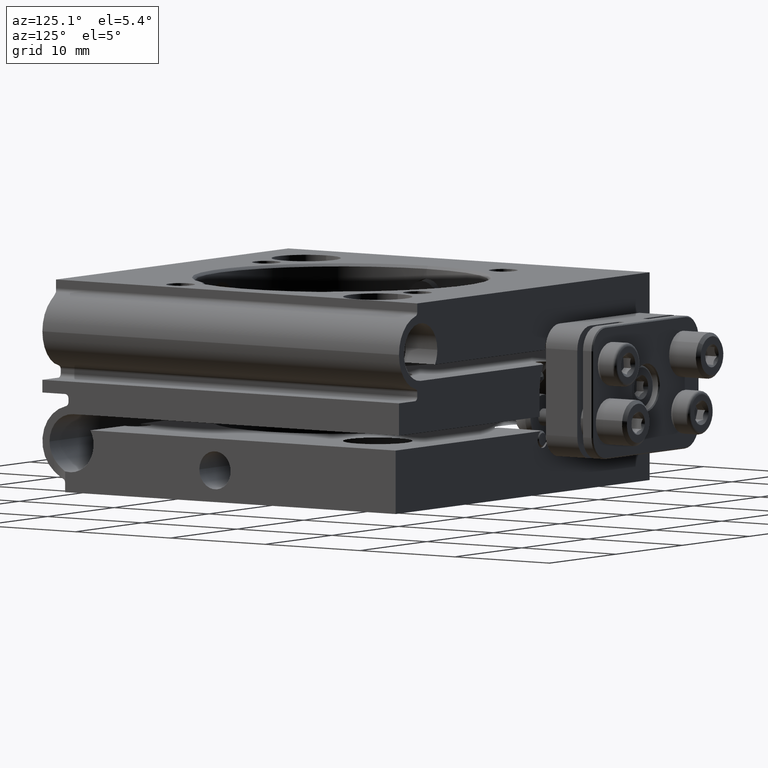
[diagram: clean part render]
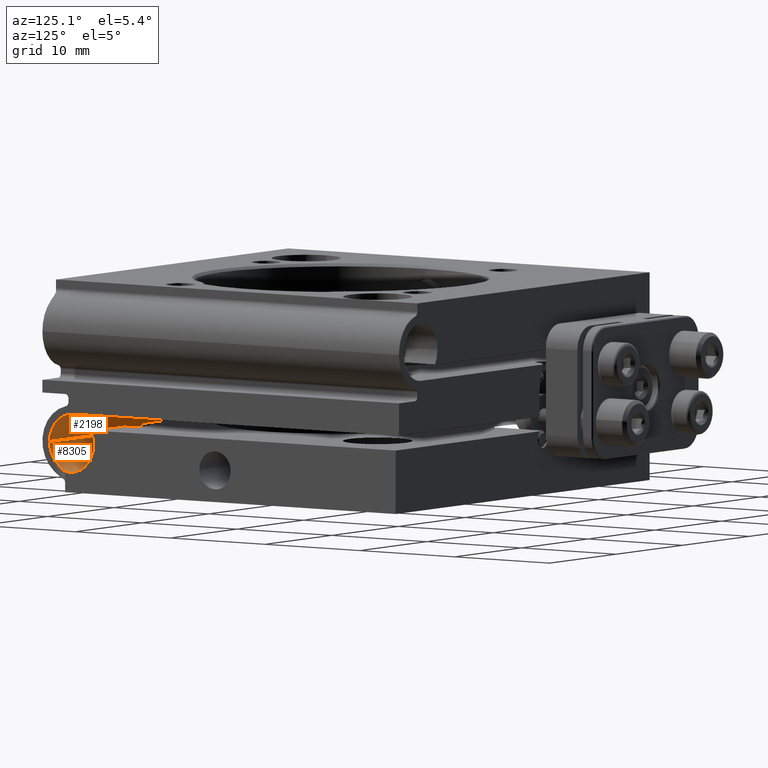
[diagram: same view with one multi-face feature highlighted, each face labeled with its STEP entity id]
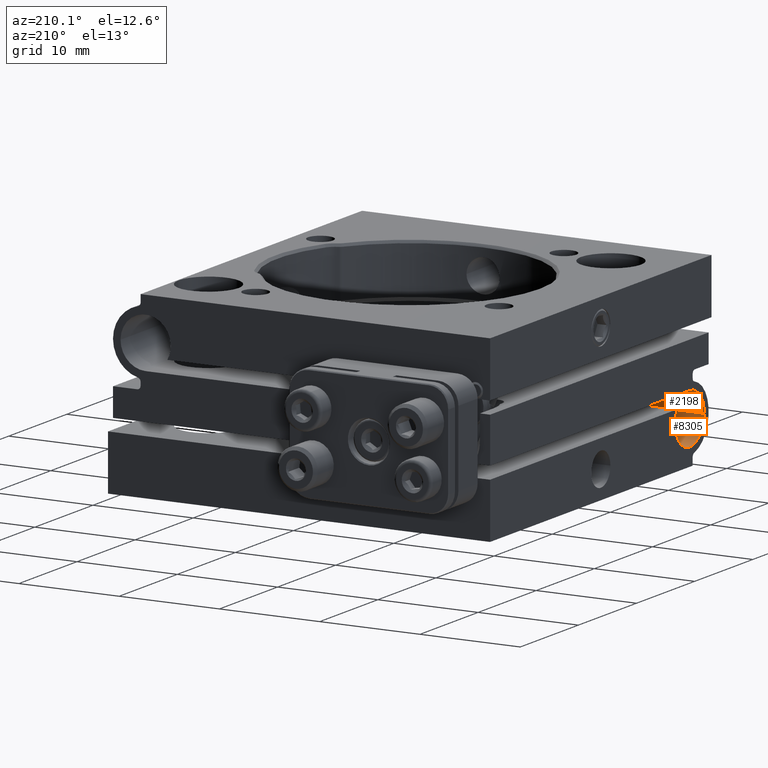
[diagram: same view with one multi-face feature highlighted, each face labeled with its STEP entity id]
A machine part, auxiliary view. The highlighted faces form ONE feature: a constant-radius fillet chain: 2 tangent blend faces with common blend radius 2.5 mm. The faces share edges in the B-rep.
A second angle (auxiliary view) of the same feature is appended — it is thin or edge-on in the first view.
Their STEP definitions:
[1] entity #8305 (Cylinder):
#11 = CARTESIAN_POINT ( 'NONE',  ( -11.86912552345113880, -14.18676383181794520, -6.989363147326552728 ) ) ;
#238 = CARTESIAN_POINT ( 'NONE',  ( 18.68813172906444109, -16.46912829085308871, -6.965143484915157224 ) ) ;
#268 = CARTESIAN_POINT ( 'NONE',  ( -19.05000000000014637, -12.80000000000006288, -4.749999999999998224 ) ) ;
#290 = CARTESIAN_POINT ( 'NONE',  ( -13.92869451226762401, -13.87913141418914975, -6.808564662429896330 ) ) ;
#352 = CARTESIAN_POINT ( 'NONE',  ( -19.05000000000016769, -17.80000000000006466, -4.749999999999997335 ) ) ;
#376 = ORIENTED_EDGE ( 'NONE', *, *, #9186, .F. ) ;
#416 = CARTESIAN_POINT ( 'NONE',  ( 11.52412764482604324, -13.12846052928413343, -5.995465306622119073 ) ) ;
#471 = VERTEX_POINT ( 'NONE', #3362 ) ;
#515 = CARTESIAN_POINT ( 'NONE',  ( 11.46256269244022619, -12.88136620718312209, -5.395786126397510429 ) ) ;
#652 = CARTESIAN_POINT ( 'NONE',  ( -9.709211507187383461, -12.94158334155742551, -5.607360020909707643 ) ) ;
#697 = VERTEX_POINT ( 'NONE', #3901 ) ;
#711 = ORIENTED_EDGE ( 'NONE', *, *, #2916, .T. ) ;
#728 = DIRECTION ( 'NONE',  ( 4.163336342344336238E-15, 1.000000000000000000, 0.0000000000000000000 ) ) ;
#844 = CARTESIAN_POINT ( 'NONE',  ( -11.61386751386468852, -14.01159592638274276, -6.893964289492882536 ) ) ;
#891 = CIRCLE ( 'NONE', #6942, 2.500000000000000444 ) ;
#895 = CARTESIAN_POINT ( 'NONE',  ( -12.91460359052774010, -14.38987082446433341, -7.078550966411806478 ) ) ;
#1057 = CARTESIAN_POINT ( 'NONE',  ( -14.15152297403902182, -13.58861523324675069, -6.575215373638408245 ) ) ;
#1144 = DIRECTION ( 'NONE',  ( 1.000000000000000000, 4.496403249731883989E-15, -2.403560570595272096E-31 ) ) ;
#1192 = CARTESIAN_POINT ( 'NONE',  ( 12.83422845103322985, -13.94977099954785160, -6.854015617617140954 ) ) ;
#1244 = CARTESIAN_POINT ( 'NONE',  ( 13.32034662612652554, -13.79173336060420496, -6.745724521207088209 ) ) ;
#1294 = EDGE_CURVE ( 'NONE', #6126, #10457, #7022, .T. ) ;
#1300 = CARTESIAN_POINT ( 'NONE',  ( 12.08197417720247735, -13.79304886617384795, -6.746703779624845687 ) ) ;
#1358 = CARTESIAN_POINT ( 'NONE',  ( 12.44028463092808323, -13.92953151930788636, -6.841437826247542375 ) ) ;
#1467 = ORIENTED_EDGE ( 'NONE', *, *, #9191, .T. ) ;
#1483 = LINE ( 'NONE', #4088, #4019 ) ;
#1501 = VECTOR ( 'NONE', #8415, 1000.000000000000000 ) ;
#1622 = CARTESIAN_POINT ( 'NONE',  ( 18.54999999999985860, -17.29999999999984794, -6.250000000000006217 ) ) ;
#1843 = LINE ( 'NONE', #268, #6780 ) ;
#1924 = CARTESIAN_POINT ( 'NONE',  ( 18.87382707348820077, -16.06007467825546797, -7.136141662852739209 ) ) ;
#2103 = CARTESIAN_POINT ( 'NONE',  ( 13.94599357943763529, -12.79999999999991367, -4.749999999999998224 ) ) ;
#2161 = CARTESIAN_POINT ( 'NONE',  ( 11.45470776693139037, -12.81030840514915248, -5.011684003713690494 ) ) ;
#2287 = VERTEX_POINT ( 'NONE', #3980 ) ;
#2366 = LINE ( 'NONE', #4857, #6908 ) ;
#2367 = DIRECTION ( 'NONE',  ( 1.000000000000000000, 4.496403249731883989E-15, 1.000802005371234018E-16 ) ) ;
#2391 = ORIENTED_EDGE ( 'NONE', *, *, #10106, .T. ) ;
#2426 = CARTESIAN_POINT ( 'NONE',  ( -9.701667129887086460, -12.80000000000002203, -4.749999999999998224 ) ) ;
#2650 = ORIENTED_EDGE ( 'NONE', *, *, #3872, .T. ) ;
#2794 = CARTESIAN_POINT ( 'NONE',  ( 11.80471076283997611, -13.57833685395233125, -6.566257052199834021 ) ) ;
#2827 = CARTESIAN_POINT ( 'NONE',  ( -15.69076080545631413, -12.94199486141328315, -5.608742429974792110 ) ) ;
#2883 = CARTESIAN_POINT ( 'NONE',  ( -9.731695728332885764, -13.13493649053896917, -5.999999999999999112 ) ) ;
#2910 = DIRECTION ( 'NONE',  ( 1.000000000000000000, 4.496403249731883989E-15, -2.403560570595272096E-31 ) ) ;
#2916 = EDGE_CURVE ( 'NONE', #2287, #8835, #1483, .T. ) ;
#2933 = CARTESIAN_POINT ( 'NONE',  ( -15.69776663888022483, -12.82886771209605214, -5.187186470878256017 ) ) ;
#2959 = CARTESIAN_POINT ( 'NONE',  ( 11.67351692628846394, -13.42066007699137664, -6.402572274337900105 ) ) ;
#3021 = CARTESIAN_POINT ( 'NONE',  ( 13.88851434937796014, -13.12083366201021839, -6.000926537023002716 ) ) ;
#3130 = ORIENTED_EDGE ( 'NONE', *, *, #10241, .T. ) ;
#3143 = VERTEX_POINT ( 'NONE', #7575 ) ;
#3159 = ORIENTED_EDGE ( 'NONE', *, *, #3198, .F. ) ;
#3177 = CARTESIAN_POINT ( 'NONE',  ( -11.05657971011751073, -13.13493649053896917, -5.999999999999999112 ) ) ;
#3198 = EDGE_CURVE ( 'NONE', #6126, #9782, #1843, .T. ) ;
#3305 = CARTESIAN_POINT ( 'NONE',  ( 19.04999999999984084, -12.79999999999992433, -4.749999999999998224 ) ) ;
#3339 = CIRCLE ( 'NONE', #3687, 2.500000000000000444 ) ;
#3362 = CARTESIAN_POINT ( 'NONE',  ( -19.05000000000016769, -12.80000000000006288, -4.749999999999998224 ) ) ;
#3451 = CARTESIAN_POINT ( 'NONE',  ( -13.23017390463614262, -14.31876651382368948, -7.049798466339553649 ) ) ;
#3573 = CARTESIAN_POINT ( 'NONE',  ( 19.04999999999985150, -15.79999999999985505, -7.199489742783176105 ) ) ;
#3687 = AXIS2_PLACEMENT_3D ( 'NONE', #7082, #2910, #6116 ) ;
#3749 = CARTESIAN_POINT ( 'NONE',  ( 11.48786131634929752, -13.01140653881117260, -5.764449344363741901 ) ) ;
#3795 = CARTESIAN_POINT ( 'NONE',  ( 13.94471040278054907, -12.84077933941733285, -5.269831506963962298 ) ) ;
#3849 = CARTESIAN_POINT ( 'NONE',  ( 11.88650555986597013, -13.65652419590910327, -6.635925498177451587 ) ) ;
#3872 = EDGE_CURVE ( 'NONE', #3143, #9795, #7010, .T. ) ;
#3901 = CARTESIAN_POINT ( 'NONE',  ( -19.05000000000014637, -17.80000000000006466, -4.749999999999997335 ) ) ;
#3980 = CARTESIAN_POINT ( 'NONE',  ( -14.34342028988264062, -13.13493649053896917, -5.999999999999999112 ) ) ;
#4019 = VECTOR ( 'NONE', #10611, 1000.000000000000000 ) ;
#4055 = CARTESIAN_POINT ( 'NONE',  ( -11.08523992944088832, -13.24322997009999270, -6.187569808728107468 ) ) ;
#4087 = CARTESIAN_POINT ( 'NONE',  ( -9.702246577588546472, -12.82904548840941139, -5.187697546170661589 ) ) ;
#4088 = CARTESIAN_POINT ( 'NONE',  ( -19.05000000000015703, -13.13493649053896739, -5.999999999999999112 ) ) ;
#4139 = CARTESIAN_POINT ( 'NONE',  ( -9.715604897026715037, -13.02512164552193497, -5.809795109005198910 ) ) ;
#4163 = CARTESIAN_POINT ( 'NONE',  ( -12.26229450242418828, -14.35652766842836847, -7.066794439296760544 ) ) ;
#4272 = CARTESIAN_POINT ( 'NONE',  ( -13.78166124993190955, -14.01531366479635032, -6.896191284040233072 ) ) ;
#4323 = CARTESIAN_POINT ( 'NONE',  ( 18.61148306599518421, -16.73219308837903796, -6.804883105394170073 ) ) ;
#4327 = DIRECTION ( 'NONE',  ( 4.163336342344336238E-15, 1.000000000000000000, 0.0000000000000000000 ) ) ;
#4372 = CARTESIAN_POINT ( 'NONE',  ( -14.34342028988264062, -13.13493649053896917, -5.999999999999999112 ) ) ;
#4429 = CARTESIAN_POINT ( 'NONE',  ( -13.12721162247956030, -14.34900222378915302, -7.062160883022761126 ) ) ;
#4550 = AXIS2_PLACEMENT_3D ( 'NONE', #7282, #9679, #728 ) ;
#4564 = CARTESIAN_POINT ( 'NONE',  ( 13.59647068351310395, -13.57714420275624079, -6.565147973023622185 ) ) ;
#4614 = CARTESIAN_POINT ( 'NONE',  ( 11.45899719018203555, -12.85110498341038543, -5.269572856289786777 ) ) ;
#4664 = CARTESIAN_POINT ( 'NONE',  ( 11.45400642056222473, -12.79999999999992610, -4.749999999999998224 ) ) ;
#4690 = CARTESIAN_POINT ( 'NONE',  ( -11.05657971011751073, -13.13493649053896917, -5.999999999999999112 ) ) ;
#4857 = CARTESIAN_POINT ( 'NONE',  ( -19.05000000000015703, -13.13493649053896739, -5.999999999999999112 ) ) ;
#4880 = VECTOR ( 'NONE', #1144, 1000.000000000000000 ) ;
#4958 = CARTESIAN_POINT ( 'NONE',  ( -11.28658732128784692, -13.65851131845306021, -6.646591189127975419 ) ) ;
#5004 = CARTESIAN_POINT ( 'NONE',  ( -11.13042043642542112, -13.37297796513397685, -6.355655413675481924 ) ) ;
#5090 = CARTESIAN_POINT ( 'NONE',  ( -9.701667129887086460, -12.80000000000002203, -4.749999999999998224 ) ) ;
#5206 = CARTESIAN_POINT ( 'NONE',  ( 18.95454264642005171, -15.92727647143958514, -7.173509541842406634 ) ) ;
#5290 = CARTESIAN_POINT ( 'NONE',  ( 13.51552427558941361, -13.65479412604345200, -6.634431546212399056 ) ) ;
#5339 = CARTESIAN_POINT ( 'NONE',  ( 13.77623262584988240, -13.34110464629130277, -6.308404560964081753 ) ) ;
#5342 = CARTESIAN_POINT ( 'NONE',  ( -19.05000000000014637, -12.80000000000006288, -4.749999999999998224 ) ) ;
#5396 = CARTESIAN_POINT ( 'NONE',  ( 13.20874725469326805, -13.84900904893340190, -6.786405139525696129 ) ) ;
#5462 = CARTESIAN_POINT ( 'NONE',  ( 11.45400642056222296, -12.79999999999992255, -4.879996780887808860 ) ) ;
#5540 = CARTESIAN_POINT ( 'NONE',  ( -15.66830427166733841, -13.13493649053896739, -5.999999999999999112 ) ) ;
#5666 = CARTESIAN_POINT ( 'NONE',  ( -11.96500703867740789, -14.23662059452732365, -7.012994336850168153 ) ) ;
#5670 = DIRECTION ( 'NONE',  ( 0.0000000000000000000, -5.551115123125781913E-15, -1.000000000000000000 ) ) ;
#5802 = VERTEX_POINT ( 'NONE', #6290 ) ;
#5876 = CARTESIAN_POINT ( 'NONE',  ( -13.52507870258987666, -14.18998210844592300, -6.990946109310413270 ) ) ;
#5880 = CARTESIAN_POINT ( 'NONE',  ( 18.58596479574201510, -16.86118493322948098, -6.709036736690567437 ) ) ;
#6116 = DIRECTION ( 'NONE',  ( 4.163336342344336238E-15, 1.000000000000000000, 0.0000000000000000000 ) ) ;
#6126 = VERTEX_POINT ( 'NONE', #6418 ) ;
#6143 = AXIS2_PLACEMENT_3D ( 'NONE', #10536, #2367, #5670 ) ;
#6155 = ORIENTED_EDGE ( 'NONE', *, *, #7985, .F. ) ;
#6262 = CARTESIAN_POINT ( 'NONE',  ( 13.94599357943763707, -12.79999999999991722, -5.011990692198999398 ) ) ;
#6290 = CARTESIAN_POINT ( 'NONE',  ( 19.04999999999985150, -15.79999999999985505, -7.199489742783176105 ) ) ;
#6326 = CARTESIAN_POINT ( 'NONE',  ( 11.47692158286395525, -12.96119719903695078, -5.642653685933487928 ) ) ;
#6418 = CARTESIAN_POINT ( 'NONE',  ( 13.94599357943763529, -12.79999999999991367, -4.749999999999998224 ) ) ;
#6481 = CARTESIAN_POINT ( 'NONE',  ( -11.69406596427143086, -14.07437833333661636, -6.929883850565940584 ) ) ;
#6584 = CYLINDRICAL_SURFACE ( 'NONE', #4550, 2.500000000000000444 ) ;
#6647 = B_SPLINE_CURVE_WITH_KNOTS ( 'NONE', 3,
 ( #6701, #9358, #7698, #5880, #4323, #238, #10051, #1924, #5206, #3573 ),
 .UNSPECIFIED., .F., .F.,
 ( 4, 2, 2, 2, 4 ),
 ( 0.0000000000000000000, 0.0004769045104964324527, 0.0009538090209928649053, 0.001430713531489297358, 0.001907618041985729811 ),
 .UNSPECIFIED. ) ;
#6650 = LINE ( 'NONE', #7150, #8821 ) ;
#6701 = CARTESIAN_POINT ( 'NONE',  ( 18.54999999999985860, -17.29999999999984794, -6.250000000000006217 ) ) ;
#6780 = VECTOR ( 'NONE', #9118, 1000.000000000000000 ) ;
#6811 = CARTESIAN_POINT ( 'NONE',  ( -19.05000000000015703, -15.30000000000006288, -4.749999999999998224 ) ) ;
#6908 = VECTOR ( 'NONE', #7238, 1000.000000000000000 ) ;
#6942 = AXIS2_PLACEMENT_3D ( 'NONE', #6811, #7555, #4327 ) ;
#7010 = CIRCLE ( 'NONE', #6143, 2.500000000000000444 ) ;
#7022 = B_SPLINE_CURVE_WITH_KNOTS ( 'NONE', 3,
 ( #2103, #6262, #3795, #9431, #3021, #5339, #7927, #4564, #5290, #1244, #5396, #8679, #1192, #10325, #1358, #7821, #1300, #3849, #2794, #2959, #9538, #8789, #416, #3749, #6326, #515, #4614, #2161, #5462, #4664 ),
 .UNSPECIFIED., .F., .F.,
 ( 4, 2, 2, 2, 2, 2, 2, 2, 2, 2, 2, 2, 2, 2, 4 ),
 ( 0.001309545519959423240, 0.002090649443888993250, 0.002871753367818563694, 0.003262305329783346530, 0.003652857291748129800, 0.004043409253712913071, 0.004433961215677696341, 0.004824513177642478744, 0.005215065139607261147, 0.005605617101572045284, 0.005996169063536827687, 0.006386721025501610957, 0.006777272987466393360, 0.007167824949431176630, 0.007558376911395959900 ),
 .UNSPECIFIED. ) ;
#7047 = CARTESIAN_POINT ( 'NONE',  ( -15.66830427166733841, -13.13493649053896739, -5.999999999999999112 ) ) ;
#7082 = CARTESIAN_POINT ( 'NONE',  ( 19.04999999999985150, -15.29999999999992433, -4.749999999999998224 ) ) ;
#7150 = CARTESIAN_POINT ( 'NONE',  ( -19.05000000000014637, -12.80000000000006288, -4.749999999999998224 ) ) ;
#7238 = DIRECTION ( 'NONE',  ( -1.000000000000000000, -4.496403249731883989E-15, 2.403560570595272096E-31 ) ) ;
#7259 = CARTESIAN_POINT ( 'NONE',  ( -9.701667129887088237, -12.80000000000001847, -4.967136381218725916 ) ) ;
#7282 = CARTESIAN_POINT ( 'NONE',  ( -19.05000000000015703, -15.30000000000006288, -4.749999999999998224 ) ) ;
#7344 = CARTESIAN_POINT ( 'NONE',  ( -12.48037737081941678, -14.39957574503835680, -7.082217049234953876 ) ) ;
#7361 = VERTEX_POINT ( 'NONE', #4690 ) ;
#7492 = CARTESIAN_POINT ( 'NONE',  ( -13.99263437193554971, -13.80790462005029973, -6.758056835336978097 ) ) ;
#7555 = DIRECTION ( 'NONE',  ( 1.000000000000000000, 4.496403249731883989E-15, -2.403560570595272096E-31 ) ) ;
#7575 = CARTESIAN_POINT ( 'NONE',  ( 18.54999999999985505, -17.79999999999992610, -4.749999999999997335 ) ) ;
#7689 = VERTEX_POINT ( 'NONE', #5090 ) ;
#7698 = CARTESIAN_POINT ( 'NONE',  ( 18.55551543504372347, -17.09610074585136275, -6.496180243330604398 ) ) ;
#7745 = CARTESIAN_POINT ( 'NONE',  ( -15.69833287011306311, -12.80000000000004690, -4.749999999999998224 ) ) ;
#7761 = LINE ( 'NONE', #352, #1501 ) ;
#7821 = CARTESIAN_POINT ( 'NONE',  ( 12.19424243438439781, -13.85039519936687213, -6.787386060522403675 ) ) ;
#7823 = LINE ( 'NONE', #5342, #4880 ) ;
#7839 = EDGE_CURVE ( 'NONE', #471, #8562, #6650, .T. ) ;
#7883 = ORIENTED_EDGE ( 'NONE', *, *, #8332, .T. ) ;
#7887 = ORIENTED_EDGE ( 'NONE', *, *, #8927, .T. ) ;
#7902 = CARTESIAN_POINT ( 'NONE',  ( -15.68441425670008194, -13.02499092738341879, -5.809568698547821874 ) ) ;
#7927 = CARTESIAN_POINT ( 'NONE',  ( 13.72758348330075684, -13.41910626730325085, -6.400827982671215111 ) ) ;
#7985 = EDGE_CURVE ( 'NONE', #697, #471, #891, .T. ) ;
#8067 = ORIENTED_EDGE ( 'NONE', *, *, #7839, .F. ) ;
#8115 = CARTESIAN_POINT ( 'NONE',  ( -15.69833287011306311, -12.80000000000004690, -4.749999999999998224 ) ) ;
#8128 = FACE_OUTER_BOUND ( 'NONE', #9383, .T. ) ;
#8211 = CARTESIAN_POINT ( 'NONE',  ( -9.731695728332885764, -13.13493649053896917, -5.999999999999999112 ) ) ;
#8237 = CARTESIAN_POINT ( 'NONE',  ( -11.39477798071006198, -13.80736899294216435, -6.762044831236819320 ) ) ;
#8250 = ORIENTED_EDGE ( 'NONE', *, *, #8437, .T. ) ;
#8288 = CARTESIAN_POINT ( 'NONE',  ( -12.80484798424377679, -14.40020729715318382, -7.082460748398551331 ) ) ;
#8305 = ADVANCED_FACE ( 'NONE', ( #8128 ), #6584, .F. ) ;
#8332 = EDGE_CURVE ( 'NONE', #7361, #2287, #9297, .T. ) ;
#8346 = CARTESIAN_POINT ( 'NONE',  ( -14.10398602909075016, -13.66290160284215638, -6.641705504256411707 ) ) ;
#8399 = CARTESIAN_POINT ( 'NONE',  ( -14.26835066700787991, -13.37564790607232723, -6.358684225931533263 ) ) ;
#8415 = DIRECTION ( 'NONE',  ( 1.000000000000000000, 4.496403249731883989E-15, -2.403560570595272096E-31 ) ) ;
#8437 = EDGE_CURVE ( 'NONE', #8835, #8562, #10454, .T. ) ;
#8446 = CARTESIAN_POINT ( 'NONE',  ( -13.70043759193739952, -14.07837809529709361, -6.932113449469039956 ) ) ;
#8448 = VERTEX_POINT ( 'NONE', #2883 ) ;
#8562 = VERTEX_POINT ( 'NONE', #8115 ) ;
#8679 = CARTESIAN_POINT ( 'NONE',  ( 12.96408912075092346, -13.92853673123346958, -6.840791509162983175 ) ) ;
#8789 = CARTESIAN_POINT ( 'NONE',  ( 11.54923977064905749, -13.19496692946746919, -6.104472069468819484 ) ) ;
#8807 = DIRECTION ( 'NONE',  ( 1.000000000000000000, 4.496403249731883989E-15, -2.403560570595272096E-31 ) ) ;
#8821 = VECTOR ( 'NONE', #8807, 1000.000000000000000 ) ;
#8835 = VERTEX_POINT ( 'NONE', #7047 ) ;
#8927 = EDGE_CURVE ( 'NONE', #7689, #8448, #10055, .T. ) ;
#9118 = DIRECTION ( 'NONE',  ( 1.000000000000000000, 4.496403249731883989E-15, -2.403560570595272096E-31 ) ) ;
#9124 = ORIENTED_EDGE ( 'NONE', *, *, #1294, .T. ) ;
#9138 = CARTESIAN_POINT ( 'NONE',  ( -13.42930008701442190, -14.23935401338185258, -7.014270794591999092 ) ) ;
#9186 = EDGE_CURVE ( 'NONE', #7689, #10457, #7823, .T. ) ;
#9191 = EDGE_CURVE ( 'NONE', #5802, #9782, #3339, .T. ) ;
#9297 = B_SPLINE_CURVE_WITH_KNOTS ( 'NONE', 3,
 ( #3177, #4055, #5004, #4958, #8237, #844, #6481, #11, #5666, #4163, #7344, #8288, #895, #4429, #3451, #9138, #5876, #8446, #4272, #290, #7492, #8346, #1057, #8399, #10046, #4372 ),
 .UNSPECIFIED., .F., .F.,
 ( 4, 2, 2, 2, 2, 2, 2, 2, 2, 2, 2, 2, 4 ),
 ( 0.0000000000000000000, 0.0006475334494782601083, 0.001295066898956520217, 0.001618833623695647940, 0.001942600348434775446, 0.002590133797913026555, 0.002913900522652154712, 0.003237667247391283303, 0.003561433972130411459, 0.003885200696869539182, 0.004208967421608667339, 0.004532734146347795930, 0.005180267595826053978 ),
 .UNSPECIFIED. ) ;
#9358 = CARTESIAN_POINT ( 'NONE',  ( 18.54999999999985860, -17.20344911053517123, -6.378734519286245686 ) ) ;
#9383 = EDGE_LOOP ( 'NONE', ( #6155, #10110, #2650, #3130, #1467, #3159, #9124, #376, #7887, #2391, #7883, #711, #8250, #8067 ) ) ;
#9431 = CARTESIAN_POINT ( 'NONE',  ( 13.91594991191496611, -13.00097943602655093, -5.766117857089536614 ) ) ;
#9538 = CARTESIAN_POINT ( 'NONE',  ( 11.62387109749660219, -13.34123938737346293, -6.308529973221444820 ) ) ;
#9679 = DIRECTION ( 'NONE',  ( 1.000000000000000000, 4.496403249731883989E-15, -2.403560570595272096E-31 ) ) ;
#9782 = VERTEX_POINT ( 'NONE', #3305 ) ;
#9795 = VERTEX_POINT ( 'NONE', #1622 ) ;
#9972 = EDGE_CURVE ( 'NONE', #697, #3143, #7761, .T. ) ;
#10046 = CARTESIAN_POINT ( 'NONE',  ( -14.31471138964996115, -13.24341391234403353, -6.187888406040446654 ) ) ;
#10051 = CARTESIAN_POINT ( 'NONE',  ( 18.73953738424174631, -16.33309467331610421, -7.031249865247694686 ) ) ;
#10055 = B_SPLINE_CURVE_WITH_KNOTS ( 'NONE', 3,
 ( #2426, #7259, #4087, #652, #4139, #8211 ),
 .UNSPECIFIED., .F., .F.,
 ( 4, 2, 4 ),
 ( 0.001303536147608631152, 0.001954596635217748044, 0.002605657122826864937 ),
 .UNSPECIFIED. ) ;
#10106 = EDGE_CURVE ( 'NONE', #8448, #7361, #2366, .T. ) ;
#10110 = ORIENTED_EDGE ( 'NONE', *, *, #9972, .T. ) ;
#10241 = EDGE_CURVE ( 'NONE', #9795, #5802, #6647, .T. ) ;
#10325 = CARTESIAN_POINT ( 'NONE',  ( 12.57007109807983802, -13.95022530322476939, -6.854307092794245548 ) ) ;
#10357 = CARTESIAN_POINT ( 'NONE',  ( -15.69833287011306311, -12.80000000000004690, -4.967372369592695236 ) ) ;
#10363 = CARTESIAN_POINT ( 'NONE',  ( 11.45400642056222473, -12.79999999999992610, -4.749999999999998224 ) ) ;
#10454 = B_SPLINE_CURVE_WITH_KNOTS ( 'NONE', 3,
 ( #5540, #7902, #2827, #2933, #10357, #7745 ),
 .UNSPECIFIED., .F., .F.,
 ( 4, 2, 4 ),
 ( 0.0000000000000000000, 0.0006517680738043128653, 0.001303536147608625731 ),
 .UNSPECIFIED. ) ;
#10457 = VERTEX_POINT ( 'NONE', #10363 ) ;
#10536 = CARTESIAN_POINT ( 'NONE',  ( 18.54999999999984439, -15.29999999999992433, -4.749999999999998224 ) ) ;
#10611 = DIRECTION ( 'NONE',  ( -1.000000000000000000, -4.496403249731883989E-15, 2.403560570595272096E-31 ) ) ;
[2] entity #2198 (Cylinder):
#5 = VECTOR ( 'NONE', #1426, 1000.000000000000000 ) ;
#47 = DIRECTION ( 'NONE',  ( 1.000000000000000000, 4.496403249731883989E-15, 1.000802005371234018E-16 ) ) ;
#183 = EDGE_CURVE ( 'NONE', #9920, #3143, #5465, .T. ) ;
#303 = DIRECTION ( 'NONE',  ( 1.000000000000000000, 4.496403249731883989E-15, -2.403560570595272096E-31 ) ) ;
#352 = CARTESIAN_POINT ( 'NONE',  ( -19.05000000000016769, -17.80000000000006466, -4.749999999999997335 ) ) ;
#697 = VERTEX_POINT ( 'NONE', #3901 ) ;
#847 = CARTESIAN_POINT ( 'NONE',  ( -11.67223815173195689, -15.53042314900190313, -2.259718855988476438 ) ) ;
#892 = DIRECTION ( 'NONE',  ( 1.000000000000000000, 4.496403249731883989E-15, -2.403560570595272096E-31 ) ) ;
#1426 = DIRECTION ( 'NONE',  ( 1.000000000000000000, 4.496403249731883989E-15, -2.403560570595272096E-31 ) ) ;
#1501 = VECTOR ( 'NONE', #8415, 1000.000000000000000 ) ;
#1670 = LINE ( 'NONE', #6593, #5 ) ;
#1994 = DIRECTION ( 'NONE',  ( 4.163336342344336238E-15, 1.000000000000000000, 0.0000000000000000000 ) ) ;
#2186 = AXIS2_PLACEMENT_3D ( 'NONE', #9078, #47, #4201 ) ;
#2198 = ADVANCED_FACE ( 'NONE', ( #5388 ), #6973, .F. ) ;
#2388 = ORIENTED_EDGE ( 'NONE', *, *, #183, .T. ) ;
#2389 = ORIENTED_EDGE ( 'NONE', *, *, #9972, .F. ) ;
#2407 = CARTESIAN_POINT ( 'NONE',  ( -13.72723071746196943, -15.53072885228399436, -2.259742602784749810 ) ) ;
#2562 = VERTEX_POINT ( 'NONE', #8976 ) ;
#2569 = CARTESIAN_POINT ( 'NONE',  ( -12.95910953655088704, -15.69165362174802070, -2.280809468239870519 ) ) ;
#3143 = VERTEX_POINT ( 'NONE', #7575 ) ;
#3524 = CARTESIAN_POINT ( 'NONE',  ( 18.54999999999984439, -15.29999999999992433, -2.249999999999997335 ) ) ;
#3901 = CARTESIAN_POINT ( 'NONE',  ( -19.05000000000014637, -17.80000000000006466, -4.749999999999997335 ) ) ;
#4005 = EDGE_CURVE ( 'NONE', #2562, #8540, #4703, .T. ) ;
#4168 = CARTESIAN_POINT ( 'NONE',  ( -11.43214437887072243, -15.43171056151367893, -2.249999999999999112 ) ) ;
#4173 = ORIENTED_EDGE ( 'NONE', *, *, #4005, .T. ) ;
#4201 = DIRECTION ( 'NONE',  ( 0.0000000000000000000, 6.938893903907227392E-16, -1.000000000000000000 ) ) ;
#4275 = CARTESIAN_POINT ( 'NONE',  ( -19.05000000000015703, -15.30000000000006288, -2.249999999999998668 ) ) ;
#4400 = CARTESIAN_POINT ( 'NONE',  ( -19.05000000000015703, -15.30000000000006288, -4.749999999999998224 ) ) ;
#4703 = B_SPLINE_CURVE_WITH_KNOTS ( 'NONE', 3,
 ( #6804, #5719, #2407, #8995, #6702, #2569, #4919, #9841, #8242, #847, #4168, #7445 ),
 .UNSPECIFIED., .F., .F.,
 ( 4, 2, 2, 2, 2, 4 ),
 ( 0.0000000000000000000, 0.0007805994264303328699, 0.001170899139645498058, 0.001561198852860662921, 0.002341798279290998718, 0.003122397705721333648 ),
 .UNSPECIFIED. ) ;
#4919 = CARTESIAN_POINT ( 'NONE',  ( -12.82917935133242437, -15.70003909588467117, -2.282213801127935593 ) ) ;
#5053 = VECTOR ( 'NONE', #892, 1000.000000000000000 ) ;
#5173 = DIRECTION ( 'NONE',  ( 1.000000000000000000, 4.496403249731883989E-15, -2.403560570595272096E-31 ) ) ;
#5388 = FACE_OUTER_BOUND ( 'NONE', #7208, .T. ) ;
#5465 = CIRCLE ( 'NONE', #2186, 2.500000000000000444 ) ;
#5570 = ORIENTED_EDGE ( 'NONE', *, *, #6197, .T. ) ;
#5583 = ORIENTED_EDGE ( 'NONE', *, *, #9050, .F. ) ;
#5719 = CARTESIAN_POINT ( 'NONE',  ( -13.96786333647141198, -15.43170612025732247, -2.249999999999999112 ) ) ;
#6197 = EDGE_CURVE ( 'NONE', #10239, #2562, #8342, .T. ) ;
#6593 = CARTESIAN_POINT ( 'NONE',  ( -19.05000000000015703, -15.30000000000006288, -2.249999999999998668 ) ) ;
#6702 = CARTESIAN_POINT ( 'NONE',  ( -13.21865773483215278, -15.65772265409529851, -2.275665959432875418 ) ) ;
#6738 = CARTESIAN_POINT ( 'NONE',  ( -19.05000000000015703, -15.30000000000006288, -2.249999999999998668 ) ) ;
#6804 = CARTESIAN_POINT ( 'NONE',  ( -14.19666295470965345, -15.30000000000006466, -2.249999999999997780 ) ) ;
#6973 = CYLINDRICAL_SURFACE ( 'NONE', #8975, 2.500000000000000444 ) ;
#7208 = EDGE_LOOP ( 'NONE', ( #2389, #5583, #5570, #4173, #9073, #2388 ) ) ;
#7445 = CARTESIAN_POINT ( 'NONE',  ( -11.20333704529049790, -15.30000000000006466, -2.249999999999998668 ) ) ;
#7575 = CARTESIAN_POINT ( 'NONE',  ( 18.54999999999985505, -17.79999999999992610, -4.749999999999997335 ) ) ;
#7761 = LINE ( 'NONE', #352, #1501 ) ;
#7924 = EDGE_CURVE ( 'NONE', #8540, #9920, #1670, .T. ) ;
#8242 = CARTESIAN_POINT ( 'NONE',  ( -12.17447229878952264, -15.66503124004145420, -2.275864353433890042 ) ) ;
#8342 = LINE ( 'NONE', #6738, #5053 ) ;
#8415 = DIRECTION ( 'NONE',  ( 1.000000000000000000, 4.496403249731883989E-15, -2.403560570595272096E-31 ) ) ;
#8540 = VERTEX_POINT ( 'NONE', #10620 ) ;
#8975 = AXIS2_PLACEMENT_3D ( 'NONE', #9423, #303, #1994 ) ;
#8976 = CARTESIAN_POINT ( 'NONE',  ( -14.19666295470965345, -15.30000000000006466, -2.249999999999997780 ) ) ;
#8995 = CARTESIAN_POINT ( 'NONE',  ( -13.34871686226209597, -15.63193172296522349, -2.271900777167153329 ) ) ;
#9050 = EDGE_CURVE ( 'NONE', #10239, #697, #10162, .T. ) ;
#9073 = ORIENTED_EDGE ( 'NONE', *, *, #7924, .T. ) ;
#9078 = CARTESIAN_POINT ( 'NONE',  ( 18.54999999999984439, -15.29999999999992433, -4.749999999999998224 ) ) ;
#9423 = CARTESIAN_POINT ( 'NONE',  ( -19.05000000000015703, -15.30000000000006288, -4.749999999999998224 ) ) ;
#9841 = CARTESIAN_POINT ( 'NONE',  ( -12.43892697021475335, -15.69992139892131888, -2.282194723848069096 ) ) ;
#9920 = VERTEX_POINT ( 'NONE', #3524 ) ;
#9972 = EDGE_CURVE ( 'NONE', #697, #3143, #7761, .T. ) ;
#10162 = CIRCLE ( 'NONE', #10674, 2.500000000000000444 ) ;
#10239 = VERTEX_POINT ( 'NONE', #4275 ) ;
#10620 = CARTESIAN_POINT ( 'NONE',  ( -11.20333704529049790, -15.30000000000006466, -2.249999999999998668 ) ) ;
#10662 = DIRECTION ( 'NONE',  ( 4.163336342344336238E-15, 1.000000000000000000, 0.0000000000000000000 ) ) ;
#10674 = AXIS2_PLACEMENT_3D ( 'NONE', #4400, #5173, #10662 ) ;